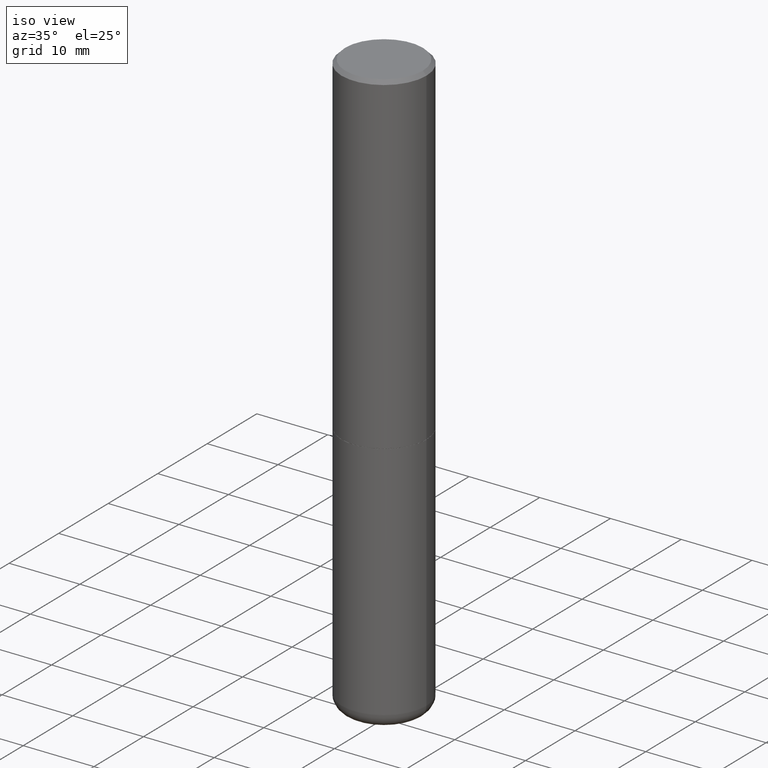
[diagram: clean part render]
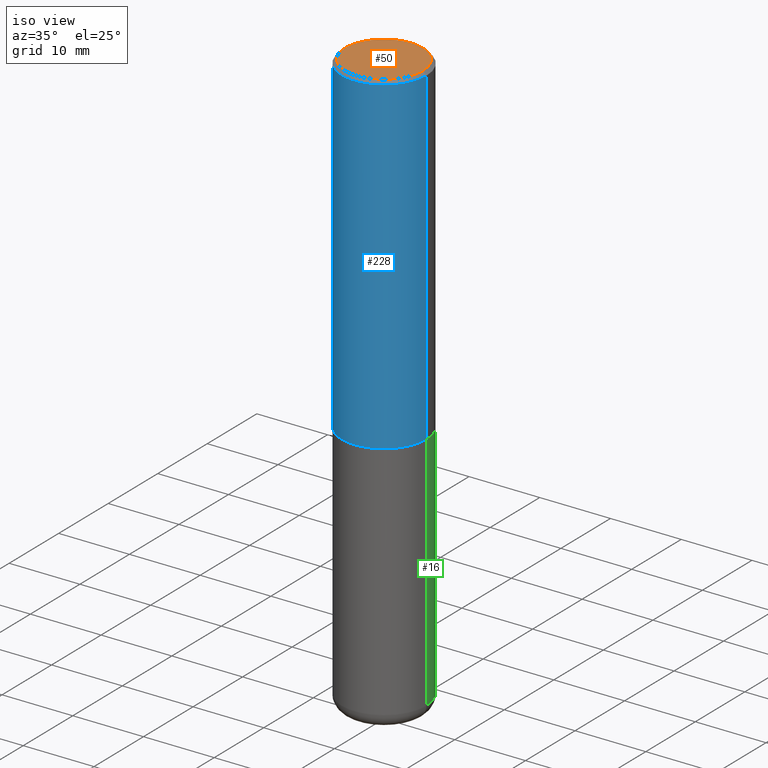
[diagram: same view with three faces highlighted in distinct colors, each labeled with its STEP entity id]
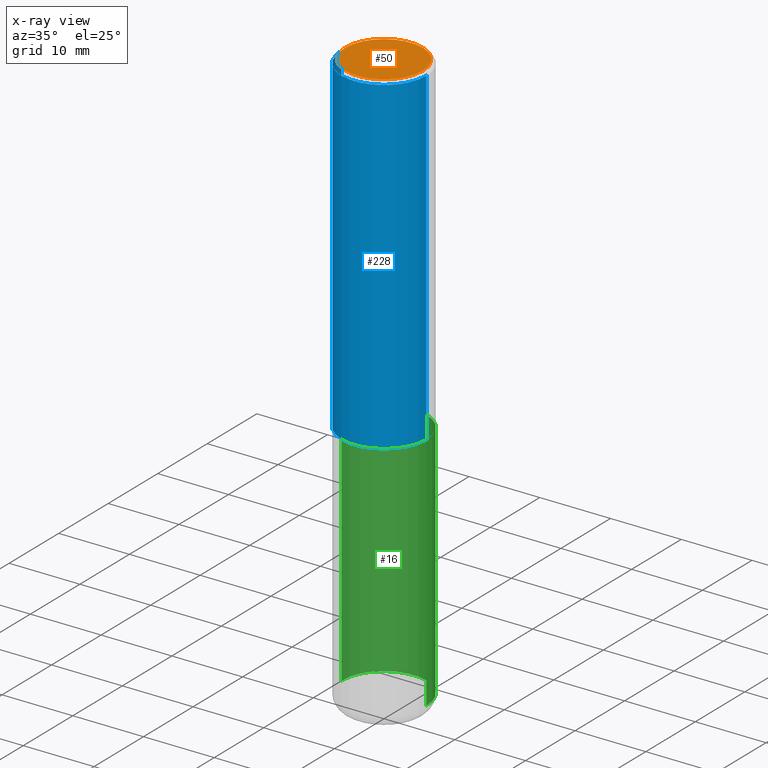
[diagram: x-ray of the same camera — body ghosted, the three highlighted faces saturated]
A machine part, iso view with three faces highlighted in distinct colors.
The next image is the same camera in x-ray (body ghosted, the three faces saturated) — at least one of them is partly hidden behind the body in this view.
Their STEP definitions:

[orange] entity #50 — the highlighted planar face has unit normal (0, -0, -1).
#3 = VERTEX_POINT ( 'NONE', #355 ) ;
#7 = PLANE ( 'NONE',  #177 ) ;
#29 = ORIENTED_EDGE ( 'NONE', *, *, #271, .T. ) ;
#50 = ADVANCED_FACE ( 'NONE', ( #396 ), #7, .F. ) ;
#94 = CARTESIAN_POINT ( 'NONE',  ( 1.509716530915769140E-15, 0.2161999999999997535, -6.801592968811301598E-16 ) ) ;
#122 = AXIS2_PLACEMENT_3D ( 'NONE', #407, #233, #369 ) ;
#131 = CIRCLE ( 'NONE', #122, 0.2161999999999997535 ) ;
#132 = DIRECTION ( 'NONE',  ( -1.000000000000000000, 6.982962677686265922E-15, -4.876176775795935793E-29 ) ) ;
#152 = ORIENTED_EDGE ( 'NONE', *, *, #340, .T. ) ;
#155 = DIRECTION ( 'NONE',  ( 2.438088387897960049E-29, -3.491481338843145188E-15, -1.000000000000000000 ) ) ;
#170 = DIRECTION ( 'NONE',  ( -2.445468806185136597E-29, 3.491481338843145583E-15, 1.000000000000000000 ) ) ;
#171 = CARTESIAN_POINT ( 'NONE',  ( 0.2161999999999997535, -1.586759460484350805E-15, 1.493979371535252139E-16 ) ) ;
#177 = AXIS2_PLACEMENT_3D ( 'NONE', #94, #155, #132 ) ;
#188 = AXIS2_PLACEMENT_3D ( 'NONE', #364, #170, #194 ) ;
#194 = DIRECTION ( 'NONE',  ( 1.000000000000000000, -6.982962677686267499E-15, 4.881916136609867620E-29 ) ) ;
#233 = DIRECTION ( 'NONE',  ( -2.445468806185136597E-29, 3.491481338843145583E-15, 1.000000000000000000 ) ) ;
#252 = CIRCLE ( 'NONE', #188, 0.2161999999999997535 ) ;
#271 = EDGE_CURVE ( 'NONE', #3, #272, #131, .T. ) ;
#272 = VERTEX_POINT ( 'NONE', #171 ) ;
#283 = EDGE_LOOP ( 'NONE', ( #29, #152 ) ) ;
#340 = EDGE_CURVE ( 'NONE', #272, #3, #252, .T. ) ;
#355 = CARTESIAN_POINT ( 'NONE',  ( -0.2161999999999997535, 1.544631344304201183E-15, 1.493979371535037174E-16 ) ) ;
#364 = CARTESIAN_POINT ( 'NONE',  ( -3.653479950173268921E-45, 5.216201096331565337E-31, 1.493979371535143917E-16 ) ) ;
#369 = DIRECTION ( 'NONE',  ( 1.000000000000000000, -6.982962677686267499E-15, 4.881916136609867620E-29 ) ) ;
#396 = FACE_OUTER_BOUND ( 'NONE', #283, .T. ) ;
#407 = CARTESIAN_POINT ( 'NONE',  ( -3.653479950173268921E-45, 5.216201096331565337E-31, 1.493979371535143917E-16 ) ) ;

[blue] entity #228 — the highlighted cylindrical surface (partial cylindrical patch) has radius 5.9995 mm, axis along (-0, 0, 1).
#6 = CARTESIAN_POINT ( 'NONE',  ( 4.890937612370285420E-31, -6.982962677686308865E-17, -0.02000000000000005246 ) ) ;
#12 = LINE ( 'NONE', #210, #63 ) ;
#25 = VERTEX_POINT ( 'NONE', #34 ) ;
#31 = EDGE_CURVE ( 'NONE', #25, #275, #394, .T. ) ;
#34 = CARTESIAN_POINT ( 'NONE',  ( -0.2362000000000002431, -1.585185665551328595E-15, -1.849400000000000155 ) ) ;
#56 = AXIS2_PLACEMENT_3D ( 'NONE', #6, #127, #97 ) ;
#59 = EDGE_CURVE ( 'NONE', #263, #205, #358, .T. ) ;
#63 = VECTOR ( 'NONE', #266, 39.37007874015748143 ) ;
#68 = DIRECTION ( 'NONE',  ( 1.000000000000000000, -6.982962677686266711E-15, 0.000000000000000000 ) ) ;
#75 = CARTESIAN_POINT ( 'NONE',  ( 0.2361999999999999378, -1.690279253850498377E-15, -0.02000000000000005246 ) ) ;
#80 = ORIENTED_EDGE ( 'NONE', *, *, #315, .T. ) ;
#89 = LINE ( 'NONE', #232, #292 ) ;
#91 = AXIS2_PLACEMENT_3D ( 'NONE', #330, #196, #328 ) ;
#97 = DIRECTION ( 'NONE',  ( 1.000000000000000000, -6.982962677686266711E-15, 0.000000000000000000 ) ) ;
#125 = ORIENTED_EDGE ( 'NONE', *, *, #317, .F. ) ;
#127 = DIRECTION ( 'NONE',  ( -2.445468806185136597E-29, 3.491481338843145583E-15, 1.000000000000000000 ) ) ;
#154 = ORIENTED_EDGE ( 'NONE', *, *, #59, .F. ) ;
#195 = DIRECTION ( 'NONE',  ( -2.445468806185136877E-29, 3.491481338843145188E-15, 1.000000000000000000 ) ) ;
#196 = DIRECTION ( 'NONE',  ( -2.445468806185136597E-29, 3.491481338843145583E-15, 1.000000000000000000 ) ) ;
#205 = VERTEX_POINT ( 'NONE', #75 ) ;
#210 = CARTESIAN_POINT ( 'NONE',  ( 0.2362000000000000766, -1.649375784469496722E-15, 1.151752954443000368E-29 ) ) ;
#228 = ADVANCED_FACE ( 'NONE', ( #399 ), #231, .T. ) ;
#231 = CYLINDRICAL_SURFACE ( 'NONE', #91, 0.2362000000000000766 ) ;
#232 = CARTESIAN_POINT ( 'NONE',  ( -0.2362000000000000766, 1.678301941865357183E-15, -1.161852468318209177E-29 ) ) ;
#243 = EDGE_LOOP ( 'NONE', ( #125, #411, #80, #154 ) ) ;
#254 = CARTESIAN_POINT ( 'NONE',  ( 4.522650010158792351E-29, -6.457145588056513780E-15, -1.849400000000000155 ) ) ;
#260 = CARTESIAN_POINT ( 'NONE',  ( -0.2361999999999999378, 1.579546157692632635E-15, -0.02000000000000005246 ) ) ;
#263 = VERTEX_POINT ( 'NONE', #260 ) ;
#266 = DIRECTION ( 'NONE',  ( -2.445468806185136877E-29, 3.491481338843145188E-15, 1.000000000000000000 ) ) ;
#275 = VERTEX_POINT ( 'NONE', #373 ) ;
#286 = DIRECTION ( 'NONE',  ( -2.445468806185136597E-29, 3.491481338843145583E-15, 1.000000000000000000 ) ) ;
#292 = VECTOR ( 'NONE', #195, 39.37007874015748143 ) ;
#315 = EDGE_CURVE ( 'NONE', #275, #205, #12, .T. ) ;
#317 = EDGE_CURVE ( 'NONE', #25, #263, #89, .T. ) ;
#327 = AXIS2_PLACEMENT_3D ( 'NONE', #254, #286, #68 ) ;
#328 = DIRECTION ( 'NONE',  ( 1.000000000000000000, -6.982962677686266711E-15, 4.876176775795935793E-29 ) ) ;
#330 = CARTESIAN_POINT ( 'NONE',  ( 0.000000000000000000, 0.000000000000000000, 0.000000000000000000 ) ) ;
#358 = CIRCLE ( 'NONE', #56, 0.2361999999999999378 ) ;
#373 = CARTESIAN_POINT ( 'NONE',  ( 0.2362000000000002153, -8.106521372526011094E-15, -1.849400000000000155 ) ) ;
#394 = CIRCLE ( 'NONE', #327, 0.2362000000000002153 ) ;
#399 = FACE_OUTER_BOUND ( 'NONE', #243, .T. ) ;
#411 = ORIENTED_EDGE ( 'NONE', *, *, #31, .T. ) ;

[green] entity #16 — the highlighted cylindrical surface (partial cylindrical patch) has radius 5.9995 mm, axis along (-0, 0, 1).
#16 = ADVANCED_FACE ( 'NONE', ( #250 ), #98, .T. ) ;
#52 = EDGE_CURVE ( 'NONE', #62, #212, #284, .T. ) ;
#54 = ORIENTED_EDGE ( 'NONE', *, *, #308, .T. ) ;
#60 = VERTEX_POINT ( 'NONE', #318 ) ;
#62 = VERTEX_POINT ( 'NONE', #221 ) ;
#67 = AXIS2_PLACEMENT_3D ( 'NONE', #339, #204, #172 ) ;
#83 = ORIENTED_EDGE ( 'NONE', *, *, #387, .T. ) ;
#87 = DIRECTION ( 'NONE',  ( -2.445468806185136597E-29, 3.491481338843145583E-15, 1.000000000000000000 ) ) ;
#92 = AXIS2_PLACEMENT_3D ( 'NONE', #360, #87, #321 ) ;
#98 = CYLINDRICAL_SURFACE ( 'NONE', #92, 0.2361999999999999933 ) ;
#102 = DIRECTION ( 'NONE',  ( -2.445468806185136877E-29, 3.491481338843145188E-15, 1.000000000000000000 ) ) ;
#105 = AXIS2_PLACEMENT_3D ( 'NONE', #129, #251, #226 ) ;
#107 = DIRECTION ( 'NONE',  ( -2.445468806185136877E-29, 3.491481338843145188E-15, 1.000000000000000000 ) ) ;
#109 = CARTESIAN_POINT ( 'NONE',  ( -0.2361999999999999655, -9.456032047705438285E-15, -3.189000000000000501 ) ) ;
#129 = CARTESIAN_POINT ( 'NONE',  ( 4.525095478964977394E-29, -6.460637069395357576E-15, -1.850400000000000267 ) ) ;
#143 = EDGE_CURVE ( 'NONE', #60, #62, #291, .T. ) ;
#172 = DIRECTION ( 'NONE',  ( 1.000000000000000000, -6.982962677686265133E-15, 0.000000000000000000 ) ) ;
#180 = VERTEX_POINT ( 'NONE', #109 ) ;
#204 = DIRECTION ( 'NONE',  ( -2.445468806185136597E-29, 3.491481338843145583E-15, 1.000000000000000000 ) ) ;
#207 = EDGE_LOOP ( 'NONE', ( #54, #83, #374, #416 ) ) ;
#212 = VERTEX_POINT ( 'NONE', #296 ) ;
#221 = CARTESIAN_POINT ( 'NONE',  ( 0.2361999999999999933, -8.110012853864854101E-15, -1.850400000000000267 ) ) ;
#226 = DIRECTION ( 'NONE',  ( 1.000000000000000000, -6.982962677686269077E-15, 0.000000000000000000 ) ) ;
#234 = CIRCLE ( 'NONE', #67, 0.2361999999999999933 ) ;
#250 = FACE_OUTER_BOUND ( 'NONE', #207, .T. ) ;
#251 = DIRECTION ( 'NONE',  ( -2.445468806185136597E-29, 3.491481338843145583E-15, 1.000000000000000000 ) ) ;
#265 = VECTOR ( 'NONE', #102, 39.37007874015748143 ) ;
#284 = CIRCLE ( 'NONE', #105, 0.2361999999999999933 ) ;
#291 = LINE ( 'NONE', #319, #370 ) ;
#296 = CARTESIAN_POINT ( 'NONE',  ( -0.2361999999999999933, -7.119183587617718156E-15, -1.850400000000000267 ) ) ;
#308 = EDGE_CURVE ( 'NONE', #60, #180, #234, .T. ) ;
#318 = CARTESIAN_POINT ( 'NONE',  ( 0.2361999999999999655, -1.278370977404028805E-14, -3.189000000000000501 ) ) ;
#319 = CARTESIAN_POINT ( 'NONE',  ( 0.2361999999999999933, -1.649375784469496131E-15, 1.151752954443000088E-29 ) ) ;
#321 = DIRECTION ( 'NONE',  ( 1.000000000000000000, -6.982962677686266711E-15, 4.876176775795936353E-29 ) ) ;
#329 = LINE ( 'NONE', #332, #265 ) ;
#332 = CARTESIAN_POINT ( 'NONE',  ( -0.2361999999999999933, 1.678301941865356591E-15, -1.161852468318208757E-29 ) ) ;
#339 = CARTESIAN_POINT ( 'NONE',  ( 7.798600022924401307E-29, -1.113433398957079310E-14, -3.189000000000000501 ) ) ;
#360 = CARTESIAN_POINT ( 'NONE',  ( 0.000000000000000000, 0.000000000000000000, 0.000000000000000000 ) ) ;
#370 = VECTOR ( 'NONE', #107, 39.37007874015748143 ) ;
#374 = ORIENTED_EDGE ( 'NONE', *, *, #52, .F. ) ;
#387 = EDGE_CURVE ( 'NONE', #180, #212, #329, .T. ) ;
#416 = ORIENTED_EDGE ( 'NONE', *, *, #143, .F. ) ;